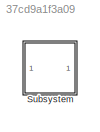
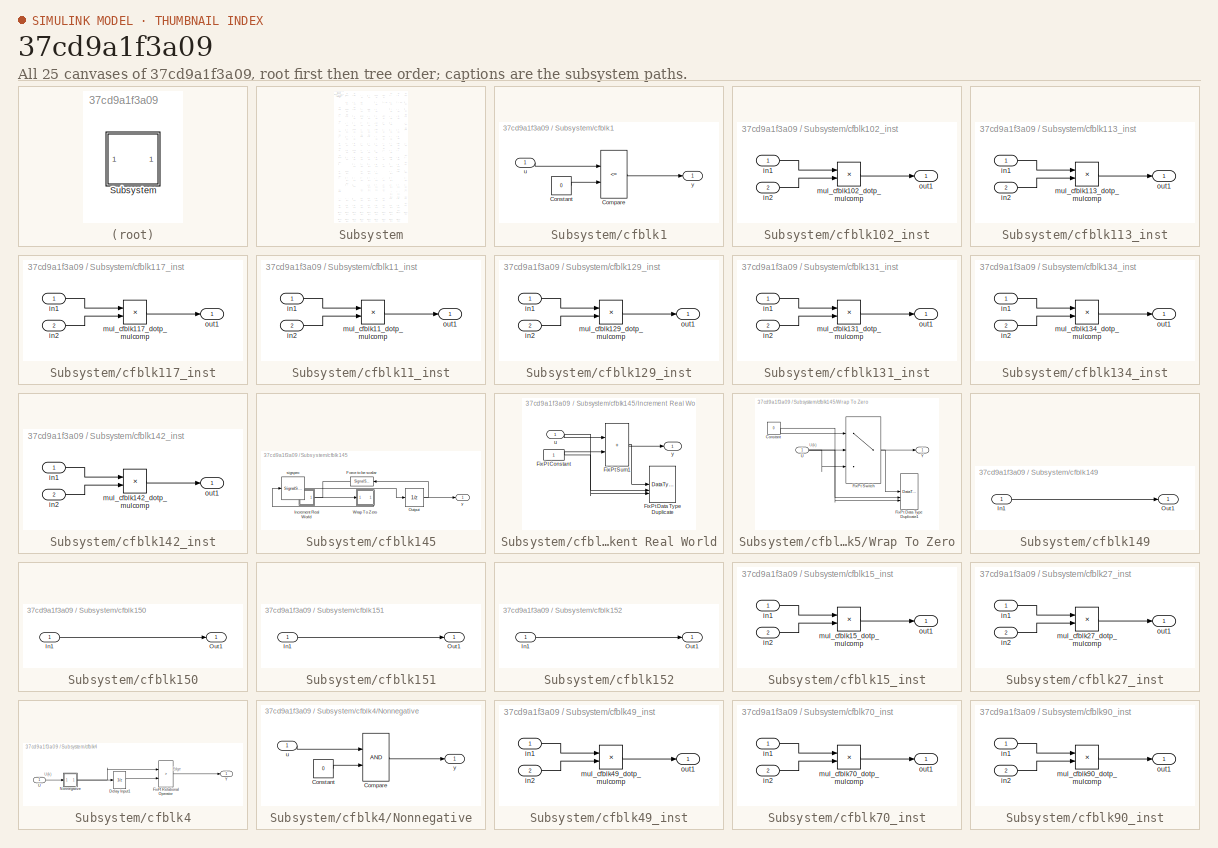
[diagram: thumbnail index - all 25 canvases of the model, root first then tree order]
MODEL slx_37cd9a1f3a09
KIND model
CONFIG AbsTol = auto
CONFIG EnableMultiTasking = off
CONFIG FixedStep = auto
CONFIG MaxStep = auto
CONFIG MinStep = auto
CONFIG RelTol = 1e-3
CONFIG SampleTimeConstraint = Unconstrained
CONFIG SolverName = VariableStepAuto
CONFIG StartTime = 0.0
CONFIG StopTime = 10.0
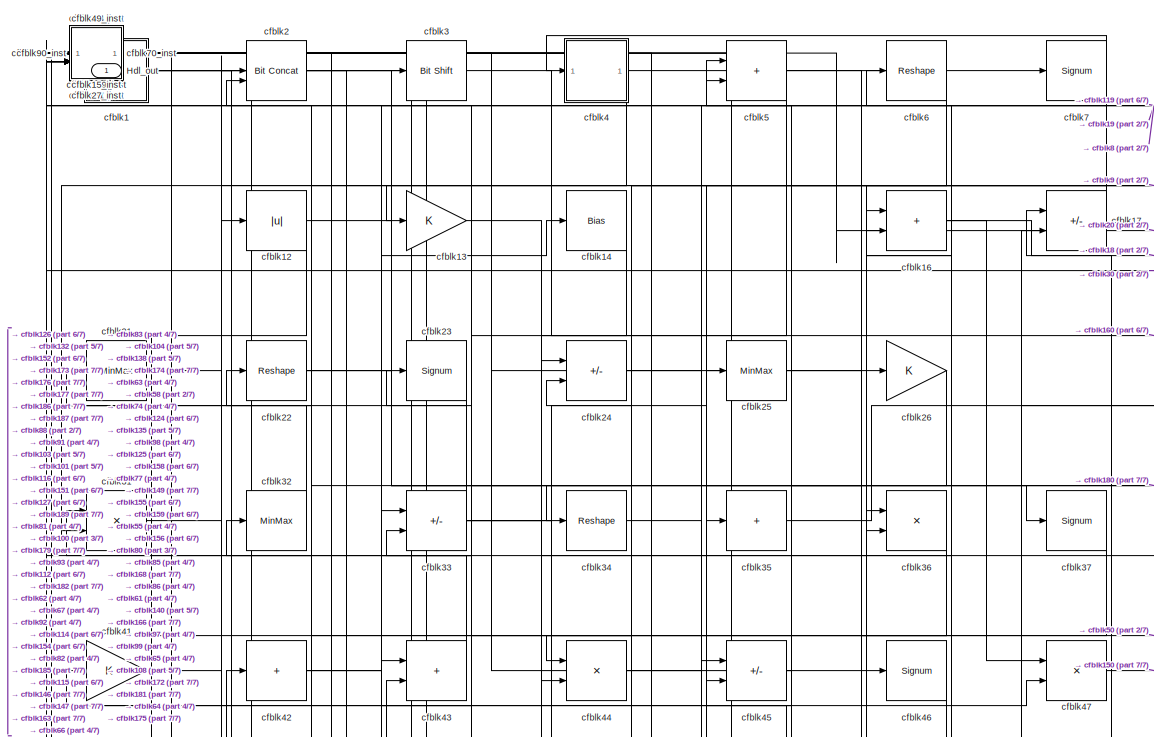
[diagram: Subsystem - part 1/7, top center region]
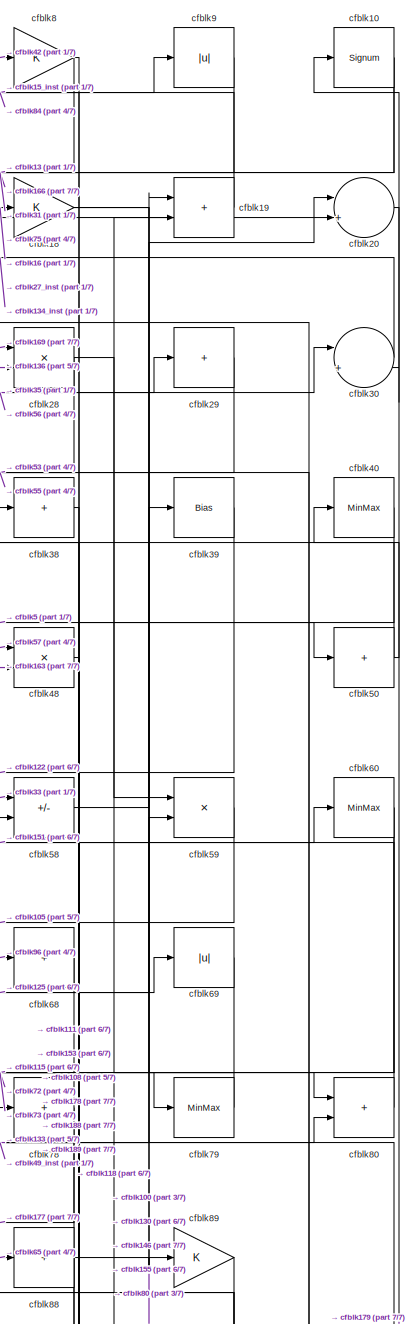
[diagram: Subsystem - part 2/7, top right region]
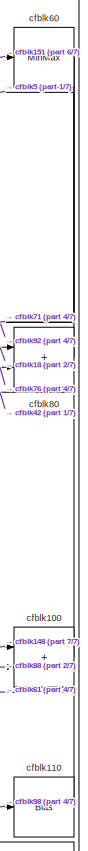
[diagram: Subsystem - part 3/7, middle right region]
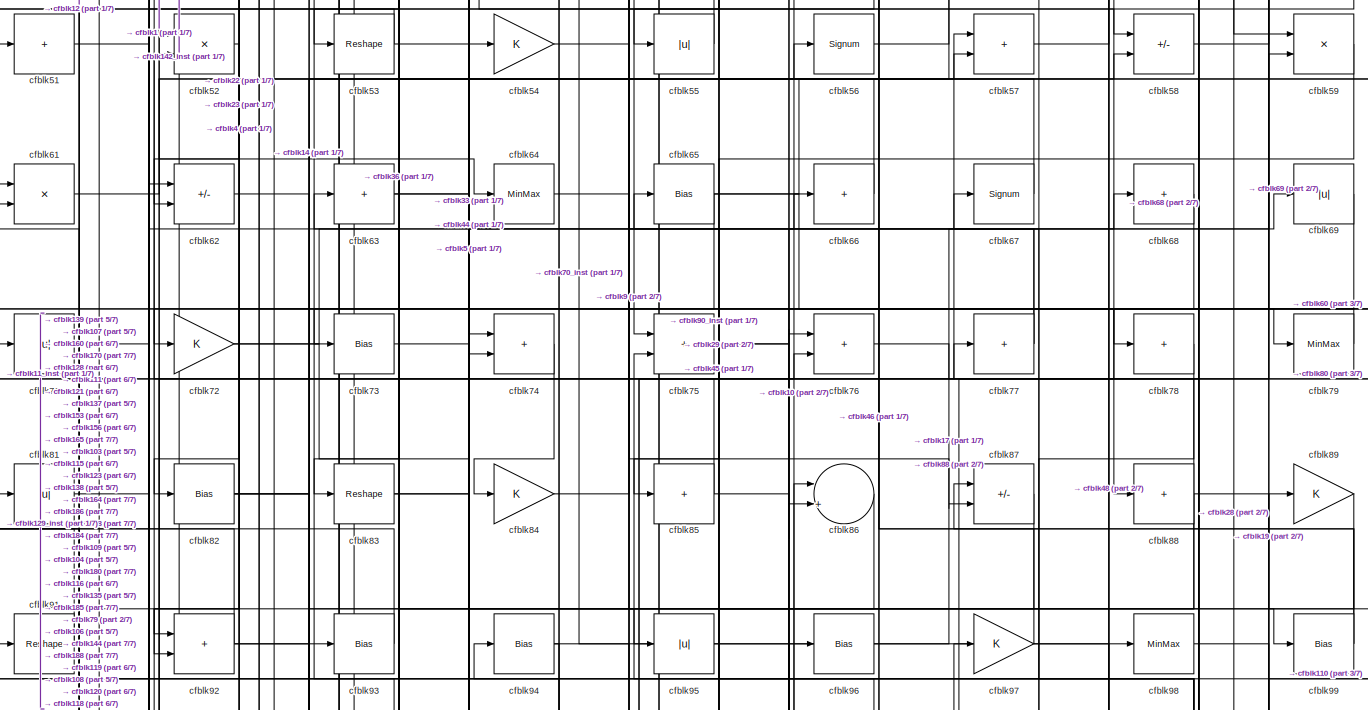
[diagram: Subsystem - part 4/7, full width, middle band]
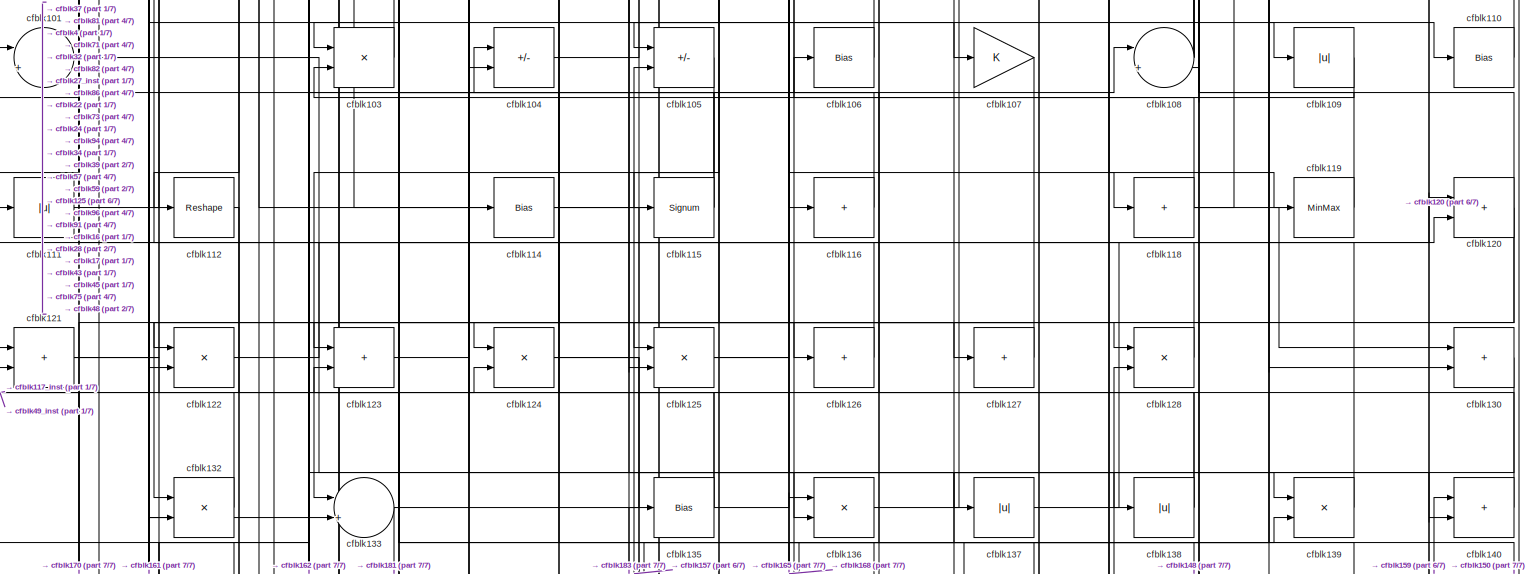
[diagram: Subsystem - part 5/7, full width, middle band]
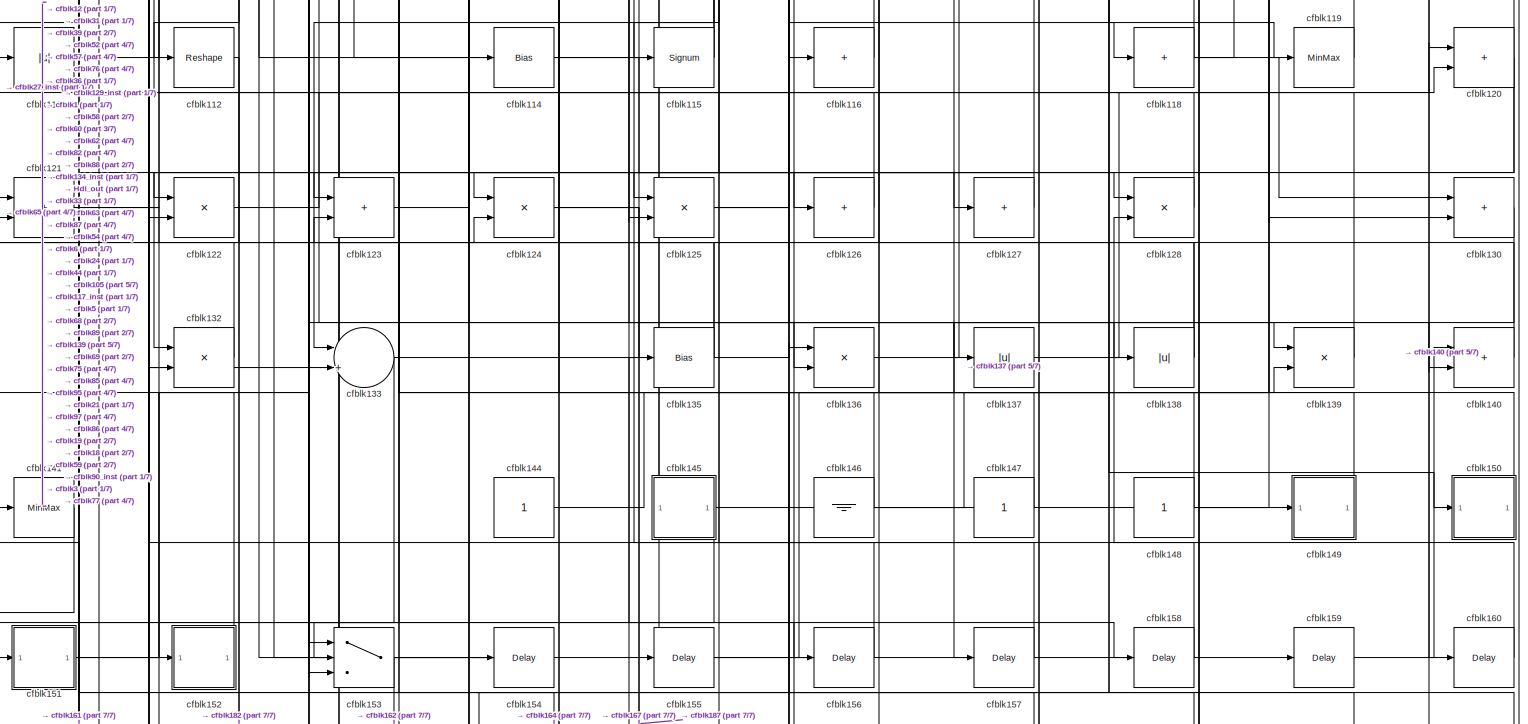
[diagram: Subsystem - part 6/7, full width, bottom band]
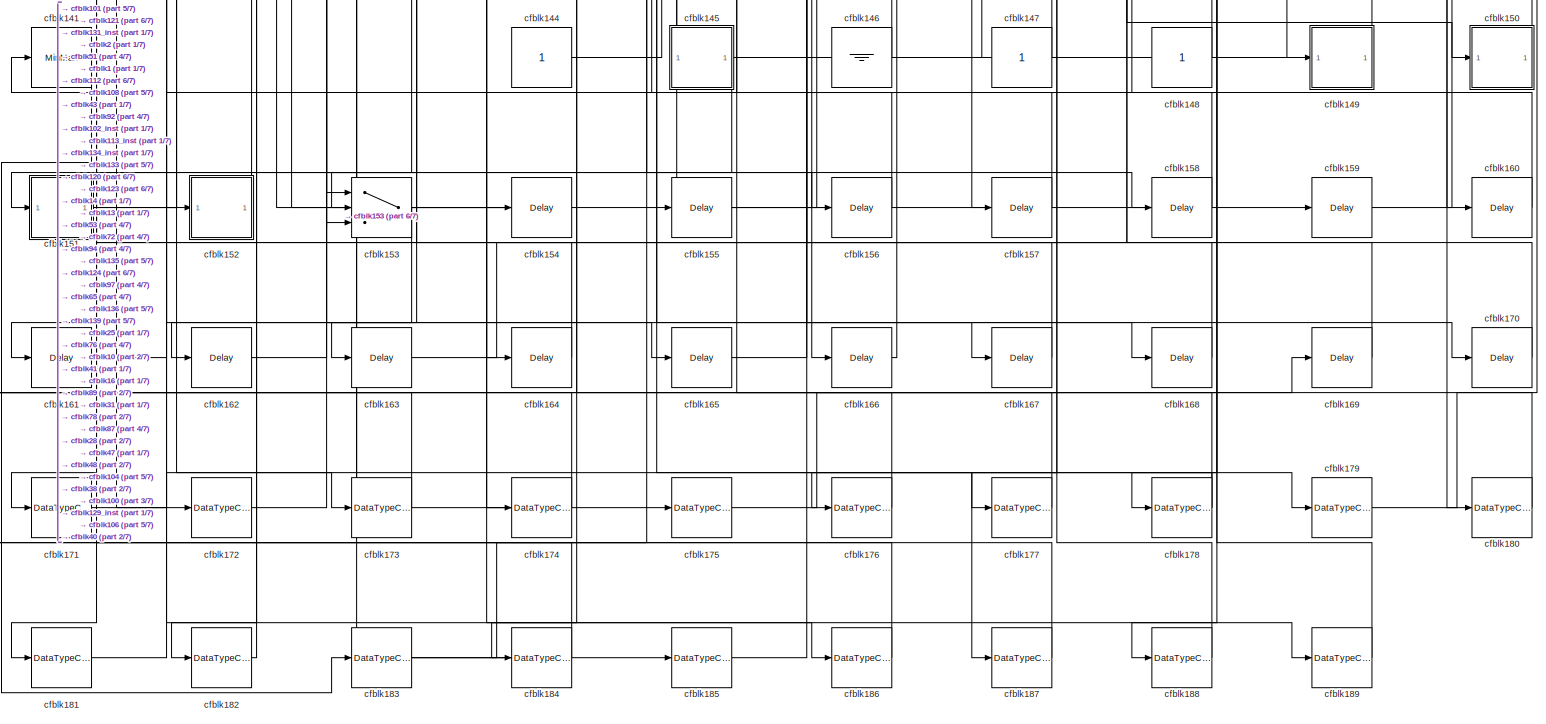
[diagram: Subsystem - part 7/7, full width, bottom band]
BLOCK [SubSystem] Subsystem
BLOCK [Outport] Subsystem/Hdl_out
  OutDataTypeStr = uint8
  SampleTime = 1
BLOCK [SubSystem] Subsystem/cfblk1
BLOCK [RelationalOperator] Subsystem/cfblk1/Compare
  Operator = <=
  OutDataTypeStr = fixdt(0, 8)
BLOCK [Constant] Subsystem/cfblk1/Constant
  DisableCoverage = on
  OutDataTypeStr = Inherit: Inherit via back propagation
  PreserveConstantTs = on
  SampleTime = -1
  Value = 0
BLOCK [Inport] Subsystem/cfblk1/u
  OutDataTypeStr = uint8
  SampleTime = 1
BLOCK [Outport] Subsystem/cfblk1/y
  SampleTime = 1
BLOCK [Signum] Subsystem/cfblk10
BLOCK [Sum] Subsystem/cfblk100
  IconShape = rectangular
  OutDataTypeStr = uint8
BLOCK [Sum] Subsystem/cfblk101
  Inputs = |++
  OutDataTypeStr = uint8
BLOCK [SubSystem] Subsystem/cfblk102_inst
BLOCK [Inport] Subsystem/cfblk102_inst/in1
  OutDataTypeStr = uint8
  SampleTime = 1
BLOCK [Inport] Subsystem/cfblk102_inst/in2
  OutDataTypeStr = uint8
  Port = 2
  SampleTime = 1
BLOCK [Product] Subsystem/cfblk102_inst/mul_cfblk102_dotp_mulcomp
  Inputs = **
  OutDataTypeStr = uint8
  SampleTime = 1
BLOCK [Outport] Subsystem/cfblk102_inst/out1
  OutDataTypeStr = uint8
  SampleTime = 1
BLOCK [Product] Subsystem/cfblk103
  Inputs = */
  OutDataTypeStr = uint8
  RndMeth = Zero
  SaturateOnIntegerOverflow = on
BLOCK [Sum] Subsystem/cfblk104
  IconShape = rectangular
  Inputs = +-
  OutDataTypeStr = uint8
BLOCK [Sum] Subsystem/cfblk105
  IconShape = rectangular
  Inputs = +-
  OutDataTypeStr = uint8
BLOCK [Bias] Subsystem/cfblk106
  Bias = 0.0
  SaturateOnIntegerOverflow = off
BLOCK [Gain] Subsystem/cfblk107
  OutDataTypeStr = uint8
BLOCK [Sum] Subsystem/cfblk108
  Inputs = |++
  OutDataTypeStr = uint8
BLOCK [Abs] Subsystem/cfblk109
  OutDataTypeStr = uint8
  SaturateOnIntegerOverflow = off
BLOCK [Bias] Subsystem/cfblk110
  Bias = 0.0
  SaturateOnIntegerOverflow = off
BLOCK [Abs] Subsystem/cfblk111
  OutDataTypeStr = uint8
  SaturateOnIntegerOverflow = off
BLOCK [Reshape] Subsystem/cfblk112
BLOCK [SubSystem] Subsystem/cfblk113_inst
BLOCK [Inport] Subsystem/cfblk113_inst/in1
  OutDataTypeStr = uint8
  SampleTime = 1
BLOCK [Inport] Subsystem/cfblk113_inst/in2
  OutDataTypeStr = uint8
  Port = 2
  SampleTime = 1
BLOCK [Product] Subsystem/cfblk113_inst/mul_cfblk113_dotp_mulcomp
  Inputs = **
  OutDataTypeStr = uint8
  SampleTime = 1
BLOCK [Outport] Subsystem/cfblk113_inst/out1
  OutDataTypeStr = uint8
  SampleTime = 1
BLOCK [Bias] Subsystem/cfblk114
  Bias = 0.0
  SaturateOnIntegerOverflow = off
BLOCK [Signum] Subsystem/cfblk115
BLOCK [Sum] Subsystem/cfblk116
  IconShape = rectangular
  Inputs = +
  OutDataTypeStr = uint8
BLOCK [SubSystem] Subsystem/cfblk117_inst
BLOCK [Inport] Subsystem/cfblk117_inst/in1
  OutDataTypeStr = uint8
  SampleTime = 1
BLOCK [Inport] Subsystem/cfblk117_inst/in2
  OutDataTypeStr = uint8
  Port = 2
  SampleTime = 1
BLOCK [Product] Subsystem/cfblk117_inst/mul_cfblk117_dotp_mulcomp
  Inputs = **
  OutDataTypeStr = uint8
  SampleTime = 1
BLOCK [Outport] Subsystem/cfblk117_inst/out1
  OutDataTypeStr = uint8
  SampleTime = 1
BLOCK [Sum] Subsystem/cfblk118
  IconShape = rectangular
  Inputs = +
  OutDataTypeStr = uint8
BLOCK [MinMax] Subsystem/cfblk119
  OutDataTypeStr = uint8
BLOCK [SubSystem] Subsystem/cfblk11_inst
BLOCK [Inport] Subsystem/cfblk11_inst/in1
  OutDataTypeStr = uint8
  SampleTime = 1
BLOCK [Inport] Subsystem/cfblk11_inst/in2
  OutDataTypeStr = uint8
  Port = 2
  SampleTime = 1
BLOCK [Product] Subsystem/cfblk11_inst/mul_cfblk11_dotp_mulcomp
  Inputs = **
  OutDataTypeStr = uint8
  SampleTime = 1
BLOCK [Outport] Subsystem/cfblk11_inst/out1
  OutDataTypeStr = uint8
  SampleTime = 1
BLOCK [Abs] Subsystem/cfblk12
  OutDataTypeStr = uint8
  SaturateOnIntegerOverflow = off
BLOCK [Sum] Subsystem/cfblk120
  IconShape = rectangular
  OutDataTypeStr = uint8
BLOCK [Sum] Subsystem/cfblk121
  IconShape = rectangular
  OutDataTypeStr = uint8
BLOCK [Product] Subsystem/cfblk122
  Inputs = */
  OutDataTypeStr = uint8
  RndMeth = Zero
  SaturateOnIntegerOverflow = on
BLOCK [Sum] Subsystem/cfblk123
  IconShape = rectangular
  OutDataTypeStr = uint8
BLOCK [Product] Subsystem/cfblk124
  Inputs = */
  OutDataTypeStr = uint8
  RndMeth = Zero
  SaturateOnIntegerOverflow = on
BLOCK [Product] Subsystem/cfblk125
  Inputs = */
  OutDataTypeStr = uint8
  RndMeth = Zero
  SaturateOnIntegerOverflow = on
BLOCK [Sum] Subsystem/cfblk126
  IconShape = rectangular
  Inputs = +
  OutDataTypeStr = uint8
BLOCK [Sum] Subsystem/cfblk127
  IconShape = rectangular
  Inputs = +
  OutDataTypeStr = uint8
BLOCK [Product] Subsystem/cfblk128
  Inputs = */
  OutDataTypeStr = uint8
  RndMeth = Zero
  SaturateOnIntegerOverflow = on
BLOCK [SubSystem] Subsystem/cfblk129_inst
BLOCK [Inport] Subsystem/cfblk129_inst/in1
  OutDataTypeStr = uint8
  SampleTime = 1
BLOCK [Inport] Subsystem/cfblk129_inst/in2
  OutDataTypeStr = uint8
  Port = 2
  SampleTime = 1
BLOCK [Product] Subsystem/cfblk129_inst/mul_cfblk129_dotp_mulcomp
  Inputs = **
  OutDataTypeStr = uint8
  SampleTime = 1
BLOCK [Outport] Subsystem/cfblk129_inst/out1
  OutDataTypeStr = uint8
  SampleTime = 1
BLOCK [Gain] Subsystem/cfblk13
  OutDataTypeStr = uint8
BLOCK [Sum] Subsystem/cfblk130
  IconShape = rectangular
  OutDataTypeStr = uint8
BLOCK [SubSystem] Subsystem/cfblk131_inst
BLOCK [Inport] Subsystem/cfblk131_inst/in1
  OutDataTypeStr = uint8
  SampleTime = 1
BLOCK [Inport] Subsystem/cfblk131_inst/in2
  OutDataTypeStr = uint8
  Port = 2
  SampleTime = 1
BLOCK [Product] Subsystem/cfblk131_inst/mul_cfblk131_dotp_mulcomp
  Inputs = **
  OutDataTypeStr = uint8
  SampleTime = 1
BLOCK [Outport] Subsystem/cfblk131_inst/out1
  OutDataTypeStr = uint8
  SampleTime = 1
BLOCK [Product] Subsystem/cfblk132
  Inputs = */
  OutDataTypeStr = uint8
  RndMeth = Zero
  SaturateOnIntegerOverflow = on
BLOCK [Sum] Subsystem/cfblk133
  Inputs = |++
  OutDataTypeStr = uint8
BLOCK [SubSystem] Subsystem/cfblk134_inst
BLOCK [Inport] Subsystem/cfblk134_inst/in1
  OutDataTypeStr = uint8
  SampleTime = 1
BLOCK [Inport] Subsystem/cfblk134_inst/in2
  OutDataTypeStr = uint8
  Port = 2
  SampleTime = 1
BLOCK [Product] Subsystem/cfblk134_inst/mul_cfblk134_dotp_mulcomp
  Inputs = **
  OutDataTypeStr = uint8
  SampleTime = 1
BLOCK [Outport] Subsystem/cfblk134_inst/out1
  OutDataTypeStr = uint8
  SampleTime = 1
BLOCK [Bias] Subsystem/cfblk135
  Bias = 0.0
  SaturateOnIntegerOverflow = off
BLOCK [Product] Subsystem/cfblk136
  Inputs = */
  OutDataTypeStr = uint8
  RndMeth = Zero
  SaturateOnIntegerOverflow = on
BLOCK [Abs] Subsystem/cfblk137
  OutDataTypeStr = uint8
  SaturateOnIntegerOverflow = off
BLOCK [Abs] Subsystem/cfblk138
  OutDataTypeStr = uint8
  SaturateOnIntegerOverflow = off
BLOCK [Product] Subsystem/cfblk139
  Inputs = */
  OutDataTypeStr = uint8
  RndMeth = Zero
  SaturateOnIntegerOverflow = on
BLOCK [Bias] Subsystem/cfblk14
  Bias = 0.0
  SaturateOnIntegerOverflow = off
BLOCK [Sum] Subsystem/cfblk140
  IconShape = rectangular
  OutDataTypeStr = uint8
BLOCK [MinMax] Subsystem/cfblk141
  OutDataTypeStr = uint8
BLOCK [SubSystem] Subsystem/cfblk142_inst
BLOCK [Inport] Subsystem/cfblk142_inst/in1
  OutDataTypeStr = uint8
  SampleTime = 1
BLOCK [Inport] Subsystem/cfblk142_inst/in2
  OutDataTypeStr = uint8
  Port = 2
  SampleTime = 1
BLOCK [Product] Subsystem/cfblk142_inst/mul_cfblk142_dotp_mulcomp
  Inputs = **
  OutDataTypeStr = uint8
  SampleTime = 1
BLOCK [Outport] Subsystem/cfblk142_inst/out1
  OutDataTypeStr = uint8
  SampleTime = 1
BLOCK [Constant] Subsystem/cfblk144
  OutDataTypeStr = uint8
  SampleTime = -1
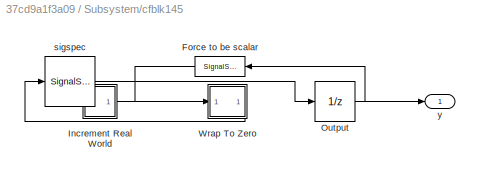
BLOCK [SubSystem] Subsystem/cfblk145
BLOCK [SignalSpecification] Subsystem/cfblk145/Force to be scalar
  Dimensions = 1
  DisableCoverage = on
BLOCK [SubSystem] Subsystem/cfblk145/Increment Real World
BLOCK [Constant] Subsystem/cfblk145/Increment Real World/FixPt Constant
  DisableCoverage = on
  OutDataTypeStr = Inherit: Inherit via back propagation
  SampleTime = -1
BLOCK [DataTypeDuplicate] Subsystem/cfblk145/Increment Real World/FixPt Data Type Duplicate
  DisableCoverage = on
  NumInputPorts = 3
BLOCK [Sum] Subsystem/cfblk145/Increment Real World/FixPt Sum1
  IconShape = rectangular
  InputSameDT = on
  LockScale = on
  OutDataTypeStr = Inherit: Inherit via back propagation
BLOCK [Inport] Subsystem/cfblk145/Increment Real World/u
  OutDataTypeStr = uint8
  SampleTime = 1
BLOCK [Outport] Subsystem/cfblk145/Increment Real World/y
  SampleTime = 1
BLOCK [UnitDelay] Subsystem/cfblk145/Output
  HasFrameUpgradeWarning = on
  InitialCondition = 0.0
  SampleTime = tsamp
BLOCK [SubSystem] Subsystem/cfblk145/Wrap To Zero
BLOCK [Constant] Subsystem/cfblk145/Wrap To Zero/Constant
  DisableCoverage = on
  OutDataTypeStr = Inherit: Inherit via back propagation
  SampleTime = -1
  Value = 0
BLOCK [DataTypeDuplicate] Subsystem/cfblk145/Wrap To Zero/FixPt Data Type Duplicate1
  DisableCoverage = on
  NumInputPorts = 3
BLOCK [Switch] Subsystem/cfblk145/Wrap To Zero/FixPt Switch
  Criteria = u2 > Threshold
  InputSameDT = off
  OutDataTypeStr = Inherit: Inherit via back propagation
  SaturateOnIntegerOverflow = off
  Threshold = Threshold
  ZeroCross = off
BLOCK [Inport] Subsystem/cfblk145/Wrap To Zero/U
  OutDataTypeStr = uint8
  SampleTime = 1
BLOCK [Outport] Subsystem/cfblk145/Wrap To Zero/Y
  SampleTime = 1
BLOCK [SignalSpecification] Subsystem/cfblk145/sigspec
  Dimensions = 1
  OutDataTypeStr = uint8
BLOCK [Outport] Subsystem/cfblk145/y
  SampleTime = 1
BLOCK [Ground] Subsystem/cfblk146
BLOCK [Constant] Subsystem/cfblk147
  OutDataTypeStr = uint8
  SampleTime = -1
BLOCK [Constant] Subsystem/cfblk148
  OutDataTypeStr = uint8
  SampleTime = -1
BLOCK [SubSystem] Subsystem/cfblk149
BLOCK [Inport] Subsystem/cfblk149/In1
  OutDataTypeStr = uint8
  PortDimensions = 1
  SampleTime = 1
BLOCK [Outport] Subsystem/cfblk149/Out1
  SampleTime = 1
BLOCK [SubSystem] Subsystem/cfblk150
BLOCK [Inport] Subsystem/cfblk150/In1
  OutDataTypeStr = uint8
  PortDimensions = 1
  SampleTime = 1
BLOCK [Outport] Subsystem/cfblk150/Out1
  SampleTime = 1
BLOCK [SubSystem] Subsystem/cfblk151
BLOCK [Inport] Subsystem/cfblk151/In1
  OutDataTypeStr = uint8
  PortDimensions = 1
  SampleTime = 1
BLOCK [Outport] Subsystem/cfblk151/Out1
  SampleTime = 1
BLOCK [SubSystem] Subsystem/cfblk152
BLOCK [Inport] Subsystem/cfblk152/In1
  OutDataTypeStr = uint8
  PortDimensions = 1
  SampleTime = 1
BLOCK [Outport] Subsystem/cfblk152/Out1
  SampleTime = 1
BLOCK [Switch] Subsystem/cfblk153
  InputSameDT = off
  OutDataTypeStr = uint8
  SaturateOnIntegerOverflow = off
BLOCK [Delay] Subsystem/cfblk154
  InputPortMap = u0
  SampleTime = 1
BLOCK [Delay] Subsystem/cfblk155
  InputPortMap = u0
  SampleTime = 1
BLOCK [Delay] Subsystem/cfblk156
  InputPortMap = u0
  SampleTime = 1
BLOCK [Delay] Subsystem/cfblk157
  InputPortMap = u0
  SampleTime = 1
BLOCK [Delay] Subsystem/cfblk158
  InputPortMap = u0
  SampleTime = 1
BLOCK [Delay] Subsystem/cfblk159
  InputPortMap = u0
  SampleTime = 1
BLOCK [SubSystem] Subsystem/cfblk15_inst
BLOCK [Inport] Subsystem/cfblk15_inst/in1
  OutDataTypeStr = uint8
  SampleTime = 1
BLOCK [Inport] Subsystem/cfblk15_inst/in2
  OutDataTypeStr = uint8
  Port = 2
  SampleTime = 1
BLOCK [Product] Subsystem/cfblk15_inst/mul_cfblk15_dotp_mulcomp
  Inputs = **
  OutDataTypeStr = uint8
  SampleTime = 1
BLOCK [Outport] Subsystem/cfblk15_inst/out1
  OutDataTypeStr = uint8
  SampleTime = 1
BLOCK [Sum] Subsystem/cfblk16
  IconShape = rectangular
  OutDataTypeStr = uint8
BLOCK [Delay] Subsystem/cfblk160
  InputPortMap = u0
  SampleTime = 1
BLOCK [Delay] Subsystem/cfblk161
  InputPortMap = u0
  SampleTime = 1
BLOCK [Delay] Subsystem/cfblk162
  InputPortMap = u0
  SampleTime = 1
BLOCK [Delay] Subsystem/cfblk163
  InputPortMap = u0
  SampleTime = 1
BLOCK [Delay] Subsystem/cfblk164
  InputPortMap = u0
  SampleTime = 1
BLOCK [Delay] Subsystem/cfblk165
  InputPortMap = u0
  SampleTime = 1
BLOCK [Delay] Subsystem/cfblk166
  InputPortMap = u0
  SampleTime = 1
BLOCK [Delay] Subsystem/cfblk167
  InputPortMap = u0
  SampleTime = 1
BLOCK [Delay] Subsystem/cfblk168
  InputPortMap = u0
  SampleTime = 1
BLOCK [Delay] Subsystem/cfblk169
  InputPortMap = u0
  SampleTime = 1
BLOCK [Sum] Subsystem/cfblk17
  IconShape = rectangular
  Inputs = +-
  OutDataTypeStr = uint8
BLOCK [Delay] Subsystem/cfblk170
  InputPortMap = u0
  SampleTime = 1
BLOCK [DataTypeConversion] Subsystem/cfblk171
  OutDataTypeStr = uint8
  RndMeth = Floor
  SaturateOnIntegerOverflow = off
BLOCK [DataTypeConversion] Subsystem/cfblk172
  OutDataTypeStr = uint8
  RndMeth = Floor
  SaturateOnIntegerOverflow = off
BLOCK [DataTypeConversion] Subsystem/cfblk173
  OutDataTypeStr = uint8
  RndMeth = Floor
  SaturateOnIntegerOverflow = off
BLOCK [DataTypeConversion] Subsystem/cfblk174
  OutDataTypeStr = uint8
  RndMeth = Floor
  SaturateOnIntegerOverflow = off
BLOCK [DataTypeConversion] Subsystem/cfblk175
  OutDataTypeStr = uint8
  RndMeth = Floor
  SaturateOnIntegerOverflow = off
BLOCK [DataTypeConversion] Subsystem/cfblk176
  OutDataTypeStr = uint8
  RndMeth = Floor
  SaturateOnIntegerOverflow = off
BLOCK [DataTypeConversion] Subsystem/cfblk177
  OutDataTypeStr = uint8
  RndMeth = Floor
  SaturateOnIntegerOverflow = off
BLOCK [DataTypeConversion] Subsystem/cfblk178
  OutDataTypeStr = uint8
  RndMeth = Floor
  SaturateOnIntegerOverflow = off
BLOCK [DataTypeConversion] Subsystem/cfblk179
  OutDataTypeStr = uint8
  RndMeth = Floor
  SaturateOnIntegerOverflow = off
BLOCK [Gain] Subsystem/cfblk18
  OutDataTypeStr = uint8
BLOCK [DataTypeConversion] Subsystem/cfblk180
  OutDataTypeStr = uint8
  RndMeth = Floor
  SaturateOnIntegerOverflow = off
BLOCK [DataTypeConversion] Subsystem/cfblk181
  OutDataTypeStr = uint8
  RndMeth = Floor
  SaturateOnIntegerOverflow = off
BLOCK [DataTypeConversion] Subsystem/cfblk182
  OutDataTypeStr = uint8
  RndMeth = Floor
  SaturateOnIntegerOverflow = off
BLOCK [DataTypeConversion] Subsystem/cfblk183
  OutDataTypeStr = uint8
  RndMeth = Floor
  SaturateOnIntegerOverflow = off
BLOCK [DataTypeConversion] Subsystem/cfblk184
  OutDataTypeStr = uint8
  RndMeth = Floor
  SaturateOnIntegerOverflow = off
BLOCK [DataTypeConversion] Subsystem/cfblk185
  OutDataTypeStr = uint8
  RndMeth = Floor
  SaturateOnIntegerOverflow = off
BLOCK [DataTypeConversion] Subsystem/cfblk186
  OutDataTypeStr = uint8
  RndMeth = Floor
  SaturateOnIntegerOverflow = off
BLOCK [DataTypeConversion] Subsystem/cfblk187
  OutDataTypeStr = uint8
  RndMeth = Floor
  SaturateOnIntegerOverflow = off
BLOCK [DataTypeConversion] Subsystem/cfblk188
  OutDataTypeStr = uint8
  RndMeth = Floor
  SaturateOnIntegerOverflow = off
BLOCK [DataTypeConversion] Subsystem/cfblk189
  OutDataTypeStr = uint8
  RndMeth = Floor
  SaturateOnIntegerOverflow = off
BLOCK [Sum] Subsystem/cfblk19
  IconShape = rectangular
  OutDataTypeStr = uint8
BLOCK [Reference] Subsystem/cfblk2  REF=hdlsllib/Logic and Bit
Operations/Bit Concat
  SourceBlock = hdlsllib/Logic and Bit\nOperations/Bit Concat
  SourceType = Bit Concat
BLOCK [Sum] Subsystem/cfblk20
  Inputs = |++
  OutDataTypeStr = uint8
BLOCK [MinMax] Subsystem/cfblk21
  OutDataTypeStr = uint8
BLOCK [Reshape] Subsystem/cfblk22
BLOCK [Signum] Subsystem/cfblk23
BLOCK [Sum] Subsystem/cfblk24
  IconShape = rectangular
  Inputs = +-
  OutDataTypeStr = uint8
BLOCK [MinMax] Subsystem/cfblk25
  OutDataTypeStr = uint8
BLOCK [Gain] Subsystem/cfblk26
  OutDataTypeStr = uint8
BLOCK [SubSystem] Subsystem/cfblk27_inst
BLOCK [Inport] Subsystem/cfblk27_inst/in1
  OutDataTypeStr = uint8
  SampleTime = 1
BLOCK [Inport] Subsystem/cfblk27_inst/in2
  OutDataTypeStr = uint8
  Port = 2
  SampleTime = 1
BLOCK [Product] Subsystem/cfblk27_inst/mul_cfblk27_dotp_mulcomp
  Inputs = **
  OutDataTypeStr = uint8
  SampleTime = 1
BLOCK [Outport] Subsystem/cfblk27_inst/out1
  OutDataTypeStr = uint8
  SampleTime = 1
BLOCK [Product] Subsystem/cfblk28
  Inputs = */
  OutDataTypeStr = uint8
  RndMeth = Zero
  SaturateOnIntegerOverflow = on
BLOCK [Sum] Subsystem/cfblk29
  IconShape = rectangular
  Inputs = +
  OutDataTypeStr = uint8
BLOCK [Reference] Subsystem/cfblk3  REF=hdlsllib/Logic and Bit
Operations/Bit Shift
  SourceBlock = hdlsllib/Logic and Bit\nOperations/Bit Shift
  SourceType = Bit Shift
BLOCK [Sum] Subsystem/cfblk30
  Inputs = |++
  OutDataTypeStr = uint8
BLOCK [Product] Subsystem/cfblk31
  Inputs = */
  OutDataTypeStr = uint8
  RndMeth = Zero
  SaturateOnIntegerOverflow = on
BLOCK [MinMax] Subsystem/cfblk32
  OutDataTypeStr = uint8
BLOCK [Sum] Subsystem/cfblk33
  IconShape = rectangular
  Inputs = +-
  OutDataTypeStr = uint8
BLOCK [Reshape] Subsystem/cfblk34
BLOCK [Sum] Subsystem/cfblk35
  IconShape = rectangular
  Inputs = +
  OutDataTypeStr = uint8
BLOCK [Product] Subsystem/cfblk36
  Inputs = */
  OutDataTypeStr = uint8
  RndMeth = Zero
  SaturateOnIntegerOverflow = on
BLOCK [Signum] Subsystem/cfblk37
BLOCK [Sum] Subsystem/cfblk38
  IconShape = rectangular
  Inputs = +
  OutDataTypeStr = uint8
BLOCK [Bias] Subsystem/cfblk39
  Bias = 0.0
  SaturateOnIntegerOverflow = off
BLOCK [SubSystem] Subsystem/cfblk4
BLOCK [UnitDelay] Subsystem/cfblk4/Delay Input1
  Description = Store in Global RAM
  DisableCoverage = on
  HasFrameUpgradeWarning = on
  InitialCondition = vinit
  SampleTime = -1
BLOCK [RelationalOperator] Subsystem/cfblk4/FixPt Relational Operator
  InputSameDT = off
  Operator = >
  OutDataTypeStr = fixdt(0, 8)
  ZeroCross = off
BLOCK [SubSystem] Subsystem/cfblk4/Nonnegative
BLOCK [RelationalOperator] Subsystem/cfblk4/Nonnegative/Compare
  OutDataTypeStr = boolean
  ZeroCross = off
BLOCK [Constant] Subsystem/cfblk4/Nonnegative/Constant
  DisableCoverage = on
  OutDataTypeStr = Inherit: Inherit via back propagation
  PreserveConstantTs = on
  SampleTime = -1
  Value = 0
BLOCK [Inport] Subsystem/cfblk4/Nonnegative/u
  OutDataTypeStr = uint8
  SampleTime = 1
BLOCK [Outport] Subsystem/cfblk4/Nonnegative/y
  SampleTime = 1
BLOCK [Inport] Subsystem/cfblk4/U
  OutDataTypeStr = uint8
  SampleTime = 1
BLOCK [Outport] Subsystem/cfblk4/Y
  SampleTime = 1
BLOCK [MinMax] Subsystem/cfblk40
  OutDataTypeStr = uint8
BLOCK [Gain] Subsystem/cfblk41
  OutDataTypeStr = uint8
BLOCK [Sum] Subsystem/cfblk42
  IconShape = rectangular
  Inputs = +
  OutDataTypeStr = uint8
BLOCK [Sum] Subsystem/cfblk43
  IconShape = rectangular
  OutDataTypeStr = uint8
BLOCK [Product] Subsystem/cfblk44
  Inputs = */
  OutDataTypeStr = uint8
  RndMeth = Zero
  SaturateOnIntegerOverflow = on
BLOCK [Sum] Subsystem/cfblk45
  IconShape = rectangular
  Inputs = +-
  OutDataTypeStr = uint8
BLOCK [Signum] Subsystem/cfblk46
BLOCK [Product] Subsystem/cfblk47
  Inputs = */
  OutDataTypeStr = uint8
  RndMeth = Zero
  SaturateOnIntegerOverflow = on
BLOCK [Product] Subsystem/cfblk48
  Inputs = */
  OutDataTypeStr = uint8
  RndMeth = Zero
  SaturateOnIntegerOverflow = on
BLOCK [SubSystem] Subsystem/cfblk49_inst
BLOCK [Inport] Subsystem/cfblk49_inst/in1
  OutDataTypeStr = uint8
  SampleTime = 1
BLOCK [Inport] Subsystem/cfblk49_inst/in2
  OutDataTypeStr = uint8
  Port = 2
  SampleTime = 1
BLOCK [Product] Subsystem/cfblk49_inst/mul_cfblk49_dotp_mulcomp
  Inputs = **
  OutDataTypeStr = uint8
  SampleTime = 1
BLOCK [Outport] Subsystem/cfblk49_inst/out1
  OutDataTypeStr = uint8
  SampleTime = 1
BLOCK [Sum] Subsystem/cfblk5
  IconShape = rectangular
  OutDataTypeStr = uint8
BLOCK [Sum] Subsystem/cfblk50
  IconShape = rectangular
  Inputs = +
  OutDataTypeStr = uint8
BLOCK [Sum] Subsystem/cfblk51
  IconShape = rectangular
  Inputs = +
  OutDataTypeStr = uint8
BLOCK [Product] Subsystem/cfblk52
  Inputs = */
  OutDataTypeStr = uint8
  RndMeth = Zero
  SaturateOnIntegerOverflow = on
BLOCK [Reshape] Subsystem/cfblk53
BLOCK [Gain] Subsystem/cfblk54
  OutDataTypeStr = uint8
BLOCK [Abs] Subsystem/cfblk55
  OutDataTypeStr = uint8
  SaturateOnIntegerOverflow = off
BLOCK [Signum] Subsystem/cfblk56
BLOCK [Sum] Subsystem/cfblk57
  IconShape = rectangular
  OutDataTypeStr = uint8
BLOCK [Sum] Subsystem/cfblk58
  IconShape = rectangular
  Inputs = +-
  OutDataTypeStr = uint8
BLOCK [Product] Subsystem/cfblk59
  Inputs = */
  OutDataTypeStr = uint8
  RndMeth = Zero
  SaturateOnIntegerOverflow = on
BLOCK [Reshape] Subsystem/cfblk6
BLOCK [MinMax] Subsystem/cfblk60
  OutDataTypeStr = uint8
BLOCK [Product] Subsystem/cfblk61
  Inputs = */
  OutDataTypeStr = uint8
  RndMeth = Zero
  SaturateOnIntegerOverflow = on
BLOCK [Sum] Subsystem/cfblk62
  IconShape = rectangular
  Inputs = +-
  OutDataTypeStr = uint8
BLOCK [Sum] Subsystem/cfblk63
  IconShape = rectangular
  Inputs = +
  OutDataTypeStr = uint8
BLOCK [MinMax] Subsystem/cfblk64
  OutDataTypeStr = uint8
BLOCK [Bias] Subsystem/cfblk65
  Bias = 0.0
  SaturateOnIntegerOverflow = off
BLOCK [Sum] Subsystem/cfblk66
  IconShape = rectangular
  Inputs = +
  OutDataTypeStr = uint8
BLOCK [Signum] Subsystem/cfblk67
BLOCK [Sum] Subsystem/cfblk68
  IconShape = rectangular
  Inputs = +
  OutDataTypeStr = uint8
BLOCK [Abs] Subsystem/cfblk69
  OutDataTypeStr = uint8
  SaturateOnIntegerOverflow = off
BLOCK [Signum] Subsystem/cfblk7
BLOCK [SubSystem] Subsystem/cfblk70_inst
BLOCK [Inport] Subsystem/cfblk70_inst/in1
  OutDataTypeStr = uint8
  SampleTime = 1
BLOCK [Inport] Subsystem/cfblk70_inst/in2
  OutDataTypeStr = uint8
  Port = 2
  SampleTime = 1
BLOCK [Product] Subsystem/cfblk70_inst/mul_cfblk70_dotp_mulcomp
  Inputs = **
  OutDataTypeStr = uint8
  SampleTime = 1
BLOCK [Outport] Subsystem/cfblk70_inst/out1
  OutDataTypeStr = uint8
  SampleTime = 1
BLOCK [Abs] Subsystem/cfblk71
  OutDataTypeStr = uint8
  SaturateOnIntegerOverflow = off
BLOCK [Gain] Subsystem/cfblk72
  OutDataTypeStr = uint8
BLOCK [Bias] Subsystem/cfblk73
  Bias = 0.0
  SaturateOnIntegerOverflow = off
BLOCK [Sum] Subsystem/cfblk74
  IconShape = rectangular
  OutDataTypeStr = uint8
BLOCK [Sum] Subsystem/cfblk75
  IconShape = rectangular
  OutDataTypeStr = uint8
BLOCK [Sum] Subsystem/cfblk76
  IconShape = rectangular
  OutDataTypeStr = uint8
BLOCK [Sum] Subsystem/cfblk77
  IconShape = rectangular
  Inputs = +
  OutDataTypeStr = uint8
BLOCK [Sum] Subsystem/cfblk78
  IconShape = rectangular
  Inputs = +
  OutDataTypeStr = uint8
BLOCK [MinMax] Subsystem/cfblk79
  OutDataTypeStr = uint8
BLOCK [Gain] Subsystem/cfblk8
  OutDataTypeStr = uint8
BLOCK [Sum] Subsystem/cfblk80
  IconShape = rectangular
  OutDataTypeStr = uint8
BLOCK [Abs] Subsystem/cfblk81
  OutDataTypeStr = uint8
  SaturateOnIntegerOverflow = off
BLOCK [Bias] Subsystem/cfblk82
  Bias = 0.0
  SaturateOnIntegerOverflow = off
BLOCK [Reshape] Subsystem/cfblk83
BLOCK [Gain] Subsystem/cfblk84
  OutDataTypeStr = uint8
BLOCK [Sum] Subsystem/cfblk85
  IconShape = rectangular
  Inputs = +
  OutDataTypeStr = uint8
BLOCK [Sum] Subsystem/cfblk86
  Inputs = |++
  OutDataTypeStr = uint8
BLOCK [Sum] Subsystem/cfblk87
  IconShape = rectangular
  Inputs = +-
  OutDataTypeStr = uint8
BLOCK [Sum] Subsystem/cfblk88
  IconShape = rectangular
  Inputs = +
  OutDataTypeStr = uint8
BLOCK [Gain] Subsystem/cfblk89
  OutDataTypeStr = uint8
BLOCK [Abs] Subsystem/cfblk9
  OutDataTypeStr = uint8
  SaturateOnIntegerOverflow = off
BLOCK [SubSystem] Subsystem/cfblk90_inst
BLOCK [Inport] Subsystem/cfblk90_inst/in1
  OutDataTypeStr = uint8
  SampleTime = 1
BLOCK [Inport] Subsystem/cfblk90_inst/in2
  OutDataTypeStr = uint8
  Port = 2
  SampleTime = 1
BLOCK [Product] Subsystem/cfblk90_inst/mul_cfblk90_dotp_mulcomp
  Inputs = **
  OutDataTypeStr = uint8
  SampleTime = 1
BLOCK [Outport] Subsystem/cfblk90_inst/out1
  OutDataTypeStr = uint8
  SampleTime = 1
BLOCK [Reshape] Subsystem/cfblk91
BLOCK [Sum] Subsystem/cfblk92
  IconShape = rectangular
  OutDataTypeStr = uint8
BLOCK [Bias] Subsystem/cfblk93
  Bias = 0.0
  SaturateOnIntegerOverflow = off
BLOCK [Bias] Subsystem/cfblk94
  Bias = 0.0
  SaturateOnIntegerOverflow = off
BLOCK [Abs] Subsystem/cfblk95
  OutDataTypeStr = uint8
  SaturateOnIntegerOverflow = off
BLOCK [Bias] Subsystem/cfblk96
  Bias = 0.0
  SaturateOnIntegerOverflow = off
BLOCK [Gain] Subsystem/cfblk97
  OutDataTypeStr = uint8
BLOCK [MinMax] Subsystem/cfblk98
  OutDataTypeStr = uint8
BLOCK [Bias] Subsystem/cfblk99
  Bias = 0.0
  SaturateOnIntegerOverflow = off
ANNOTATION Subsystem/cfblk145/Wrap To Zero: U(k)
ANNOTATION Subsystem/cfblk4: Edge
ANNOTATION Subsystem/cfblk4: U(k)
LINE Subsystem/cfblk100:1 -> Subsystem/cfblk42:1
LINE Subsystem/cfblk101:1 -> Subsystem/cfblk136:2
LINE Subsystem/cfblk102_inst/in1:1 -> Subsystem/cfblk102_inst/mul_cfblk102_dotp_mulcomp:1
LINE Subsystem/cfblk102_inst/in2:1 -> Subsystem/cfblk102_inst/mul_cfblk102_dotp_mulcomp:2
LINE Subsystem/cfblk102_inst/mul_cfblk102_dotp_mulcomp:1 -> Subsystem/cfblk102_inst/out1:1
LINE Subsystem/cfblk102_inst:1 -> Subsystem/cfblk185:1
LINE Subsystem/cfblk103:1 -> Subsystem/cfblk27_inst:1
LINE Subsystem/cfblk104:1 -> Subsystem/cfblk57:1
LINE Subsystem/cfblk105:1 -> Subsystem/cfblk133:1
LINE Subsystem/cfblk106:1 -> Subsystem/cfblk91:1
LINE Subsystem/cfblk107:1 -> Subsystem/cfblk132:1
NET Subsystem/cfblk108:1 -> Subsystem/cfblk17:1, Subsystem/cfblk43:2, Subsystem/cfblk45:2, Subsystem/cfblk75:2
LINE Subsystem/cfblk109:1 -> Subsystem/cfblk103:2
NET Subsystem/cfblk10:1 -> Subsystem/cfblk166:1, Subsystem/cfblk75:1
LINE Subsystem/cfblk110:1 -> Subsystem/cfblk61:2
LINE Subsystem/cfblk111:1 -> Subsystem/cfblk76:2
LINE Subsystem/cfblk112:1 -> Subsystem/cfblk182:1
LINE Subsystem/cfblk113_inst/in1:1 -> Subsystem/cfblk113_inst/mul_cfblk113_dotp_mulcomp:1
LINE Subsystem/cfblk113_inst/in2:1 -> Subsystem/cfblk113_inst/mul_cfblk113_dotp_mulcomp:2
LINE Subsystem/cfblk113_inst/mul_cfblk113_dotp_mulcomp:1 -> Subsystem/cfblk113_inst/out1:1
LINE Subsystem/cfblk113_inst:1 -> Subsystem/cfblk175:1
LINE Subsystem/cfblk114:1 -> Subsystem/cfblk126:1
NET Subsystem/cfblk115:1 -> Subsystem/Hdl_out:1, Subsystem/cfblk33:2, Subsystem/cfblk63:1
LINE Subsystem/cfblk116:1 -> Subsystem/cfblk21:1
LINE Subsystem/cfblk117_inst/in1:1 -> Subsystem/cfblk117_inst/mul_cfblk117_dotp_mulcomp:1
LINE Subsystem/cfblk117_inst/in2:1 -> Subsystem/cfblk117_inst/mul_cfblk117_dotp_mulcomp:2
LINE Subsystem/cfblk117_inst/mul_cfblk117_dotp_mulcomp:1 -> Subsystem/cfblk117_inst/out1:1
LINE Subsystem/cfblk117_inst:1 -> Subsystem/cfblk159:1
NET Subsystem/cfblk118:1 -> Subsystem/cfblk130:1, Subsystem/cfblk19:2, Subsystem/cfblk86:1
LINE Subsystem/cfblk119:1 -> Subsystem/cfblk90_inst:1
LINE Subsystem/cfblk11_inst/in1:1 -> Subsystem/cfblk11_inst/mul_cfblk11_dotp_mulcomp:1
LINE Subsystem/cfblk11_inst/in2:1 -> Subsystem/cfblk11_inst/mul_cfblk11_dotp_mulcomp:2
LINE Subsystem/cfblk11_inst/mul_cfblk11_dotp_mulcomp:1 -> Subsystem/cfblk11_inst/out1:1
NET Subsystem/cfblk11_inst:1 -> Subsystem/cfblk70_inst:2, Subsystem/cfblk7:1
NET Subsystem/cfblk120:1 -> Subsystem/cfblk153:2, Subsystem/cfblk161:1, Subsystem/cfblk77:1
NET Subsystem/cfblk121:1 -> Subsystem/cfblk124:2, Subsystem/cfblk57:2
LINE Subsystem/cfblk122:1 -> Subsystem/cfblk120:2
LINE Subsystem/cfblk123:1 -> Subsystem/cfblk54:1
NET Subsystem/cfblk124:1 -> Subsystem/cfblk167:1, Subsystem/cfblk187:1
NET Subsystem/cfblk125:1 -> Subsystem/cfblk139:1, Subsystem/cfblk69:1
LINE Subsystem/cfblk126:1 -> Subsystem/cfblk27_inst:2
LINE Subsystem/cfblk127:1 -> Subsystem/cfblk122:1
LINE Subsystem/cfblk128:1 -> Subsystem/cfblk52:2
LINE Subsystem/cfblk129_inst/in1:1 -> Subsystem/cfblk129_inst/mul_cfblk129_dotp_mulcomp:1
LINE Subsystem/cfblk129_inst/in2:1 -> Subsystem/cfblk129_inst/mul_cfblk129_dotp_mulcomp:2
LINE Subsystem/cfblk129_inst/mul_cfblk129_dotp_mulcomp:1 -> Subsystem/cfblk129_inst/out1:1
LINE Subsystem/cfblk129_inst:1 -> Subsystem/cfblk154:1
NET Subsystem/cfblk12:1 -> Subsystem/cfblk151:1, Subsystem/cfblk86:2
LINE Subsystem/cfblk130:1 -> Subsystem/cfblk157:1
LINE Subsystem/cfblk131_inst/in1:1 -> Subsystem/cfblk131_inst/mul_cfblk131_dotp_mulcomp:1
LINE Subsystem/cfblk131_inst/in2:1 -> Subsystem/cfblk131_inst/mul_cfblk131_dotp_mulcomp:2
LINE Subsystem/cfblk131_inst/mul_cfblk131_dotp_mulcomp:1 -> Subsystem/cfblk131_inst/out1:1
LINE Subsystem/cfblk131_inst:1 -> Subsystem/cfblk172:1
LINE Subsystem/cfblk132:1 -> Subsystem/cfblk117_inst:1
NET Subsystem/cfblk133:1 -> Subsystem/cfblk181:1, Subsystem/cfblk39:1
LINE Subsystem/cfblk134_inst/in1:1 -> Subsystem/cfblk134_inst/mul_cfblk134_dotp_mulcomp:1
LINE Subsystem/cfblk134_inst/in2:1 -> Subsystem/cfblk134_inst/mul_cfblk134_dotp_mulcomp:2
LINE Subsystem/cfblk134_inst/mul_cfblk134_dotp_mulcomp:1 -> Subsystem/cfblk134_inst/out1:1
NET Subsystem/cfblk134_inst:1 -> Subsystem/cfblk149:1, Subsystem/cfblk155:1
NET Subsystem/cfblk135:1 -> Subsystem/cfblk24:2, Subsystem/cfblk49_inst:2, Subsystem/cfblk96:1
LINE Subsystem/cfblk136:1 -> Subsystem/cfblk28:2
LINE Subsystem/cfblk137:1 -> Subsystem/cfblk120:1
NET Subsystem/cfblk138:1 -> Subsystem/cfblk24:1, Subsystem/cfblk32:1
LINE Subsystem/cfblk139:1 -> Subsystem/cfblk81:1
LINE Subsystem/cfblk13:1 -> Subsystem/cfblk174:1
LINE Subsystem/cfblk140:1 -> Subsystem/cfblk16:1
LINE Subsystem/cfblk141:1 -> Subsystem/cfblk183:1
LINE Subsystem/cfblk142_inst/in1:1 -> Subsystem/cfblk142_inst/mul_cfblk142_dotp_mulcomp:1
LINE Subsystem/cfblk142_inst/in2:1 -> Subsystem/cfblk142_inst/mul_cfblk142_dotp_mulcomp:2
LINE Subsystem/cfblk142_inst/mul_cfblk142_dotp_mulcomp:1 -> Subsystem/cfblk142_inst/out1:1
LINE Subsystem/cfblk142_inst:1 -> Subsystem/cfblk93:1
LINE Subsystem/cfblk144:1 -> Subsystem/cfblk97:1
LINE Subsystem/cfblk145:1 -> Subsystem/cfblk171:1
NET Subsystem/cfblk146:1 -> Subsystem/cfblk41:1, Subsystem/cfblk89:1
LINE Subsystem/cfblk147:1 -> Subsystem/cfblk31:1
NET Subsystem/cfblk148:1 -> Subsystem/cfblk100:1, Subsystem/cfblk104:1
LINE Subsystem/cfblk149/In1:1 -> Subsystem/cfblk149/Out1:1
LINE Subsystem/cfblk149:1 -> Subsystem/cfblk129_inst:2
LINE Subsystem/cfblk14:1 -> Subsystem/cfblk163:1
LINE Subsystem/cfblk150/In1:1 -> Subsystem/cfblk150/Out1:1
LINE Subsystem/cfblk150:1 -> Subsystem/cfblk106:1
LINE Subsystem/cfblk151/In1:1 -> Subsystem/cfblk151/Out1:1
NET Subsystem/cfblk151:1 -> Subsystem/cfblk58:2, Subsystem/cfblk60:1
LINE Subsystem/cfblk152/In1:1 -> Subsystem/cfblk152/Out1:1
LINE Subsystem/cfblk152:1 -> Subsystem/cfblk134_inst:2
LINE Subsystem/cfblk153:1 -> Subsystem/cfblk162:1
LINE Subsystem/cfblk154:1 -> Subsystem/cfblk1:1
LINE Subsystem/cfblk155:1 -> Subsystem/cfblk59:2
LINE Subsystem/cfblk156:1 -> Subsystem/cfblk5:1
LINE Subsystem/cfblk157:1 -> Subsystem/cfblk105:2
LINE Subsystem/cfblk158:1 -> Subsystem/cfblk128:2
LINE Subsystem/cfblk159:1 -> Subsystem/cfblk140:1
LINE Subsystem/cfblk15_inst/in1:1 -> Subsystem/cfblk15_inst/mul_cfblk15_dotp_mulcomp:1
LINE Subsystem/cfblk15_inst/in2:1 -> Subsystem/cfblk15_inst/mul_cfblk15_dotp_mulcomp:2
LINE Subsystem/cfblk15_inst/mul_cfblk15_dotp_mulcomp:1 -> Subsystem/cfblk15_inst/out1:1
LINE Subsystem/cfblk15_inst:1 -> Subsystem/cfblk26:1
LINE Subsystem/cfblk160:1 -> Subsystem/cfblk52:1
LINE Subsystem/cfblk161:1 -> Subsystem/cfblk133:2
LINE Subsystem/cfblk162:1 -> Subsystem/cfblk108:1
LINE Subsystem/cfblk163:1 -> Subsystem/cfblk48:2
LINE Subsystem/cfblk164:1 -> Subsystem/cfblk123:2
LINE Subsystem/cfblk165:1 -> Subsystem/cfblk139:2
LINE Subsystem/cfblk166:1 -> Subsystem/cfblk16:2
LINE Subsystem/cfblk167:1 -> Subsystem/cfblk121:1
LINE Subsystem/cfblk168:1 -> Subsystem/cfblk136:1
LINE Subsystem/cfblk169:1 -> Subsystem/cfblk28:1
NET Subsystem/cfblk16:1 -> Subsystem/cfblk18:1, Subsystem/cfblk47:1
LINE Subsystem/cfblk170:1 -> Subsystem/cfblk101:1
LINE Subsystem/cfblk171:1 -> Subsystem/cfblk173:1
LINE Subsystem/cfblk172:1 -> Subsystem/cfblk43:1
LINE Subsystem/cfblk173:1 -> Subsystem/cfblk131_inst:1
LINE Subsystem/cfblk174:1 -> Subsystem/cfblk131_inst:2
LINE Subsystem/cfblk175:1 -> Subsystem/cfblk169:1
LINE Subsystem/cfblk176:1 -> Subsystem/cfblk113_inst:1
LINE Subsystem/cfblk177:1 -> Subsystem/cfblk113_inst:2
NET Subsystem/cfblk178:1 -> Subsystem/cfblk176:1, Subsystem/cfblk94:1
LINE Subsystem/cfblk179:1 -> Subsystem/cfblk40:1
LINE Subsystem/cfblk17:1 -> Subsystem/cfblk6:1
LINE Subsystem/cfblk180:1 -> Subsystem/cfblk65:1
LINE Subsystem/cfblk181:1 -> Subsystem/cfblk2:1
LINE Subsystem/cfblk182:1 -> Subsystem/cfblk2:2
LINE Subsystem/cfblk183:1 -> Subsystem/cfblk135:1
LINE Subsystem/cfblk184:1 -> Subsystem/cfblk141:1
LINE Subsystem/cfblk185:1 -> Subsystem/cfblk76:1
LINE Subsystem/cfblk186:1 -> Subsystem/cfblk102_inst:1
LINE Subsystem/cfblk187:1 -> Subsystem/cfblk102_inst:2
LINE Subsystem/cfblk188:1 -> Subsystem/cfblk87:1
LINE Subsystem/cfblk189:1 -> Subsystem/cfblk38:1
NET Subsystem/cfblk18:1 -> Subsystem/cfblk130:2, Subsystem/cfblk80:1
LINE Subsystem/cfblk19:1 -> Subsystem/cfblk15_inst:2
NET Subsystem/cfblk1:1 -> Subsystem/cfblk179:1, Subsystem/cfblk64:1
LINE Subsystem/cfblk20:1 -> Subsystem/cfblk30:2
LINE Subsystem/cfblk21:1 -> Subsystem/cfblk152:1
NET Subsystem/cfblk22:1 -> Subsystem/cfblk104:2, Subsystem/cfblk37:1
LINE Subsystem/cfblk23:1 -> Subsystem/cfblk92:2
LINE Subsystem/cfblk24:1 -> Subsystem/cfblk125:2
LINE Subsystem/cfblk25:1 -> Subsystem/cfblk168:1
LINE Subsystem/cfblk26:1 -> Subsystem/cfblk35:1
LINE Subsystem/cfblk27_inst/in1:1 -> Subsystem/cfblk27_inst/mul_cfblk27_dotp_mulcomp:1
LINE Subsystem/cfblk27_inst/in2:1 -> Subsystem/cfblk27_inst/mul_cfblk27_dotp_mulcomp:2
LINE Subsystem/cfblk27_inst/mul_cfblk27_dotp_mulcomp:1 -> Subsystem/cfblk27_inst/out1:1
LINE Subsystem/cfblk27_inst:1 -> Subsystem/cfblk20:2
NET Subsystem/cfblk28:1 -> Subsystem/cfblk53:1, Subsystem/cfblk59:1
LINE Subsystem/cfblk29:1 -> Subsystem/cfblk55:1
LINE Subsystem/cfblk2:1 -> Subsystem/cfblk180:1
LINE Subsystem/cfblk30:1 -> Subsystem/cfblk134_inst:1
LINE Subsystem/cfblk31:1 -> Subsystem/cfblk127:1
LINE Subsystem/cfblk32:1 -> Subsystem/cfblk117_inst:2
NET Subsystem/cfblk33:1 -> Subsystem/cfblk25:1, Subsystem/cfblk58:1, Subsystem/cfblk70_inst:1, Subsystem/cfblk74:1
LINE Subsystem/cfblk34:1 -> Subsystem/cfblk140:2
LINE Subsystem/cfblk35:1 -> Subsystem/cfblk30:1
NET Subsystem/cfblk36:1 -> Subsystem/cfblk112:1, Subsystem/cfblk83:1
LINE Subsystem/cfblk37:1 -> Subsystem/cfblk101:2
LINE Subsystem/cfblk38:1 -> Subsystem/cfblk188:1
LINE Subsystem/cfblk39:1 -> Subsystem/cfblk122:2
LINE Subsystem/cfblk3:1 -> Subsystem/cfblk160:1
LINE Subsystem/cfblk40:1 -> Subsystem/cfblk178:1
LINE Subsystem/cfblk41:1 -> Subsystem/cfblk189:1
NET Subsystem/cfblk42:1 -> Subsystem/cfblk47:2, Subsystem/cfblk8:1
LINE Subsystem/cfblk43:1 -> Subsystem/cfblk33:1
LINE Subsystem/cfblk44:1 -> Subsystem/cfblk158:1
LINE Subsystem/cfblk45:1 -> Subsystem/cfblk85:1
LINE Subsystem/cfblk46:1 -> Subsystem/cfblk61:1
LINE Subsystem/cfblk47:1 -> Subsystem/cfblk150:1
LINE Subsystem/cfblk48:1 -> Subsystem/cfblk108:2
LINE Subsystem/cfblk49_inst/in1:1 -> Subsystem/cfblk49_inst/mul_cfblk49_dotp_mulcomp:1
LINE Subsystem/cfblk49_inst/in2:1 -> Subsystem/cfblk49_inst/mul_cfblk49_dotp_mulcomp:2
LINE Subsystem/cfblk49_inst/mul_cfblk49_dotp_mulcomp:1 -> Subsystem/cfblk49_inst/out1:1
LINE Subsystem/cfblk49_inst:1 -> Subsystem/cfblk46:1
NET Subsystem/cfblk4:1 -> Subsystem/cfblk132:2, Subsystem/cfblk62:2
NET Subsystem/cfblk50:1 -> Subsystem/cfblk10:1, Subsystem/cfblk15_inst:1
LINE Subsystem/cfblk51:1 -> Subsystem/cfblk170:1
LINE Subsystem/cfblk52:1 -> Subsystem/cfblk82:1
NET Subsystem/cfblk53:1 -> Subsystem/cfblk186:1, Subsystem/cfblk51:1
LINE Subsystem/cfblk54:1 -> Subsystem/cfblk99:1
LINE Subsystem/cfblk55:1 -> Subsystem/cfblk90_inst:2
LINE Subsystem/cfblk56:1 -> Subsystem/cfblk29:1
LINE Subsystem/cfblk57:1 -> Subsystem/cfblk48:1
LINE Subsystem/cfblk58:1 -> Subsystem/cfblk20:1
LINE Subsystem/cfblk59:1 -> Subsystem/cfblk105:1
NET Subsystem/cfblk5:1 -> Subsystem/cfblk50:1, Subsystem/cfblk74:2
NET Subsystem/cfblk60:1 -> Subsystem/cfblk71:1, Subsystem/cfblk92:1
LINE Subsystem/cfblk61:1 -> Subsystem/cfblk56:1
LINE Subsystem/cfblk62:1 -> Subsystem/cfblk156:1
NET Subsystem/cfblk63:1 -> Subsystem/cfblk36:1, Subsystem/cfblk44:2
LINE Subsystem/cfblk64:1 -> Subsystem/cfblk87:2
NET Subsystem/cfblk65:1 -> Subsystem/cfblk121:2, Subsystem/cfblk17:2, Subsystem/cfblk88:1
LINE Subsystem/cfblk66:1 -> Subsystem/cfblk23:1
LINE Subsystem/cfblk67:1 -> Subsystem/cfblk22:1
LINE Subsystem/cfblk68:1 -> Subsystem/cfblk115:1
LINE Subsystem/cfblk69:1 -> Subsystem/cfblk72:1
NET Subsystem/cfblk6:1 -> Subsystem/cfblk124:1, Subsystem/cfblk34:1
LINE Subsystem/cfblk70_inst/in1:1 -> Subsystem/cfblk70_inst/mul_cfblk70_dotp_mulcomp:1
LINE Subsystem/cfblk70_inst/in2:1 -> Subsystem/cfblk70_inst/mul_cfblk70_dotp_mulcomp:2
LINE Subsystem/cfblk70_inst/mul_cfblk70_dotp_mulcomp:1 -> Subsystem/cfblk70_inst/out1:1
NET Subsystem/cfblk70_inst:1 -> Subsystem/cfblk3:1, Subsystem/cfblk98:1
LINE Subsystem/cfblk71:1 -> Subsystem/cfblk107:1
NET Subsystem/cfblk72:1 -> Subsystem/cfblk164:1, Subsystem/cfblk19:1
LINE Subsystem/cfblk73:1 -> Subsystem/cfblk138:1
LINE Subsystem/cfblk74:1 -> Subsystem/cfblk84:1
NET Subsystem/cfblk75:1 -> Subsystem/cfblk128:1, Subsystem/cfblk79:1
LINE Subsystem/cfblk76:1 -> Subsystem/cfblk80:2
NET Subsystem/cfblk77:1 -> Subsystem/cfblk45:1, Subsystem/cfblk62:1
LINE Subsystem/cfblk78:1 -> Subsystem/cfblk177:1
LINE Subsystem/cfblk79:1 -> Subsystem/cfblk73:1
NET Subsystem/cfblk7:1 -> Subsystem/cfblk44:1, Subsystem/cfblk4:1
LINE Subsystem/cfblk80:1 -> Subsystem/cfblk5:2
LINE Subsystem/cfblk81:1 -> Subsystem/cfblk12:1
NET Subsystem/cfblk82:1 -> Subsystem/cfblk137:1, Subsystem/cfblk14:1, Subsystem/cfblk153:1
NET Subsystem/cfblk83:1 -> Subsystem/cfblk66:1, Subsystem/cfblk95:1
LINE Subsystem/cfblk84:1 -> Subsystem/cfblk9:1
NET Subsystem/cfblk85:1 -> Subsystem/cfblk118:1, Subsystem/cfblk11_inst:1
LINE Subsystem/cfblk86:1 -> Subsystem/cfblk103:1
LINE Subsystem/cfblk87:1 -> Subsystem/cfblk123:1
NET Subsystem/cfblk88:1 -> Subsystem/cfblk100:2, Subsystem/cfblk111:1, Subsystem/cfblk153:3, Subsystem/cfblk49_inst:1
LINE Subsystem/cfblk89:1 -> Subsystem/cfblk125:1
NET Subsystem/cfblk8:1 -> Subsystem/cfblk13:1, Subsystem/cfblk78:1
LINE Subsystem/cfblk90_inst/in1:1 -> Subsystem/cfblk90_inst/mul_cfblk90_dotp_mulcomp:1
LINE Subsystem/cfblk90_inst/in2:1 -> Subsystem/cfblk90_inst/mul_cfblk90_dotp_mulcomp:2
LINE Subsystem/cfblk90_inst/mul_cfblk90_dotp_mulcomp:1 -> Subsystem/cfblk90_inst/out1:1
LINE Subsystem/cfblk90_inst:1 -> Subsystem/cfblk114:1
LINE Subsystem/cfblk91:1 -> Subsystem/cfblk142_inst:2
NET Subsystem/cfblk92:1 -> Subsystem/cfblk142_inst:1, Subsystem/cfblk165:1
LINE Subsystem/cfblk93:1 -> Subsystem/cfblk129_inst:1
NET Subsystem/cfblk94:1 -> Subsystem/cfblk109:1, Subsystem/cfblk184:1
LINE Subsystem/cfblk95:1 -> Subsystem/cfblk116:1
LINE Subsystem/cfblk96:1 -> Subsystem/cfblk68:1
NET Subsystem/cfblk97:1 -> Subsystem/cfblk119:1, Subsystem/cfblk36:2
LINE Subsystem/cfblk98:1 -> Subsystem/cfblk110:1
NET Subsystem/cfblk99:1 -> Subsystem/cfblk11_inst:2, Subsystem/cfblk67:1
LINE Subsystem/cfblk9:1 -> Subsystem/cfblk31:2
note: NET lines group one-source signal fan-out (src -> all destinations, sorted); 1:1 wires keep LINE
